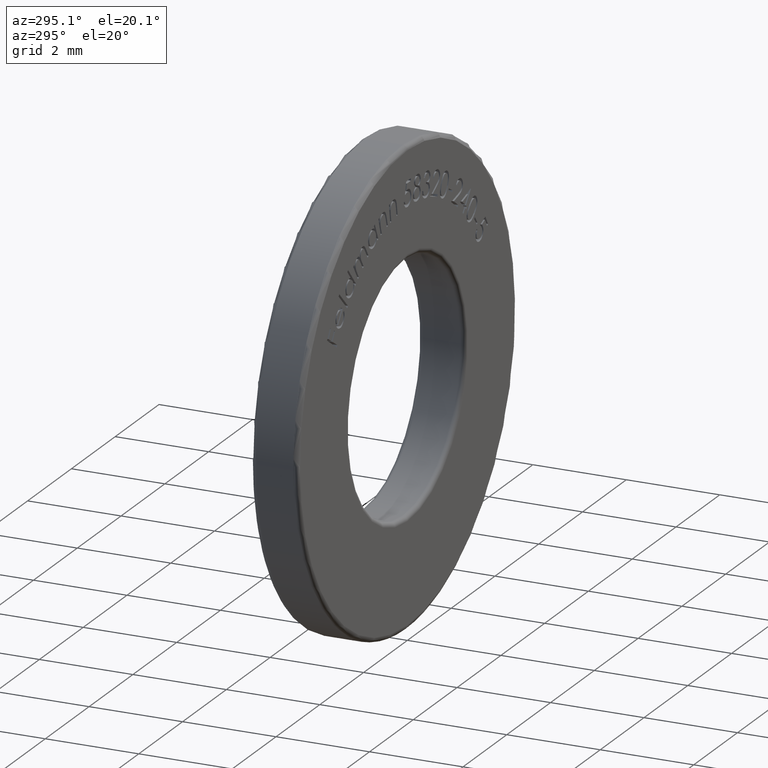
[diagram: clean part render]
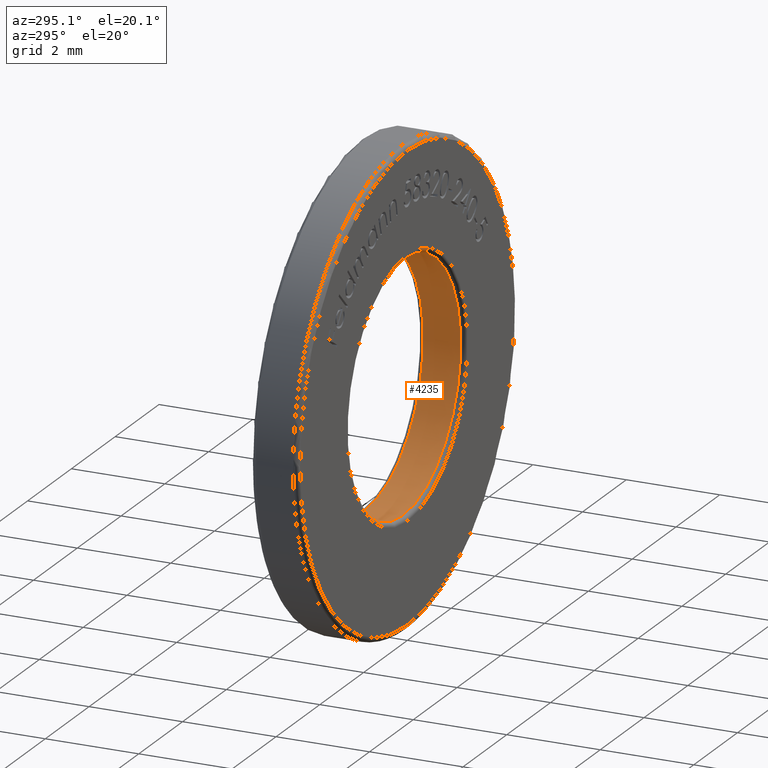
[diagram: same view with one face highlighted and labeled with its STEP entity id]
A machine part, auxiliary view. The second image highlights one B-rep face of the part: STEP entity #4235.
In plain terms, the highlighted cylindrical surface (bore or boss wall) has radius 2.65 mm, axis along (-0, -1, -0).
Its self-contained STEP definition (entity closure, byte-faithful):
#113 = EDGE_CURVE ( 'NONE', #5139, #5139, #6886, .T. ) ;
#212 = CYLINDRICAL_SURFACE ( 'NONE', #12287, 2.649999999999999900 ) ;
#391 = FACE_OUTER_BOUND ( 'NONE', #1727, .T. ) ;
#851 = DIRECTION ( 'NONE',  ( 0.0000000000000000000, 1.000000000000000000, 0.0000000000000000000 ) ) ;
#1039 = CIRCLE ( 'NONE', #11893, 2.649999999999999900 ) ;
#1415 = EDGE_CURVE ( 'NONE', #13690, #13690, #1039, .T. ) ;
#1523 = CARTESIAN_POINT ( 'NONE',  ( 0.0000000000000000000, 0.1000000000000000500, 2.649999999999999900 ) ) ;
#1727 = EDGE_LOOP ( 'NONE', ( #9985 ) ) ;
#3197 = CARTESIAN_POINT ( 'NONE',  ( 0.0000000000000000000, 0.9000000000000000200, 0.0000000000000000000 ) ) ;
#3487 = FACE_OUTER_BOUND ( 'NONE', #10766, .T. ) ;
#4235 = ADVANCED_FACE ( 'NONE', ( #3487, #391 ), #212, .F. ) ;
#5139 = VERTEX_POINT ( 'NONE', #10631 ) ;
#6363 = DIRECTION ( 'NONE',  ( 0.0000000000000000000, 0.0000000000000000000, 1.000000000000000000 ) ) ;
#6886 = CIRCLE ( 'NONE', #14034, 2.649999999999999900 ) ;
#8019 = DIRECTION ( 'NONE',  ( -0.0000000000000000000, -1.000000000000000000, -0.0000000000000000000 ) ) ;
#8713 = CARTESIAN_POINT ( 'NONE',  ( 0.0000000000000000000, 0.1000000000000000500, 0.0000000000000000000 ) ) ;
#9935 = ORIENTED_EDGE ( 'NONE', *, *, #1415, .T. ) ;
#9985 = ORIENTED_EDGE ( 'NONE', *, *, #113, .T. ) ;
#9986 = DIRECTION ( 'NONE',  ( 0.0000000000000000000, 0.0000000000000000000, 1.000000000000000000 ) ) ;
#10631 = CARTESIAN_POINT ( 'NONE',  ( 0.0000000000000000000, 0.9000000000000000200, 2.649999999999999900 ) ) ;
#10766 = EDGE_LOOP ( 'NONE', ( #9935 ) ) ;
#11106 = DIRECTION ( 'NONE',  ( -0.0000000000000000000, -1.000000000000000000, -0.0000000000000000000 ) ) ;
#11722 = CARTESIAN_POINT ( 'NONE',  ( 0.0000000000000000000, 1.000000000000000000, 0.0000000000000000000 ) ) ;
#11893 = AXIS2_PLACEMENT_3D ( 'NONE', #8713, #11106, #6363 ) ;
#12287 = AXIS2_PLACEMENT_3D ( 'NONE', #11722, #8019, #12666 ) ;
#12666 = DIRECTION ( 'NONE',  ( 0.0000000000000000000, 0.0000000000000000000, -1.000000000000000000 ) ) ;
#13690 = VERTEX_POINT ( 'NONE', #1523 ) ;
#14034 = AXIS2_PLACEMENT_3D ( 'NONE', #3197, #851, #9986 ) ;